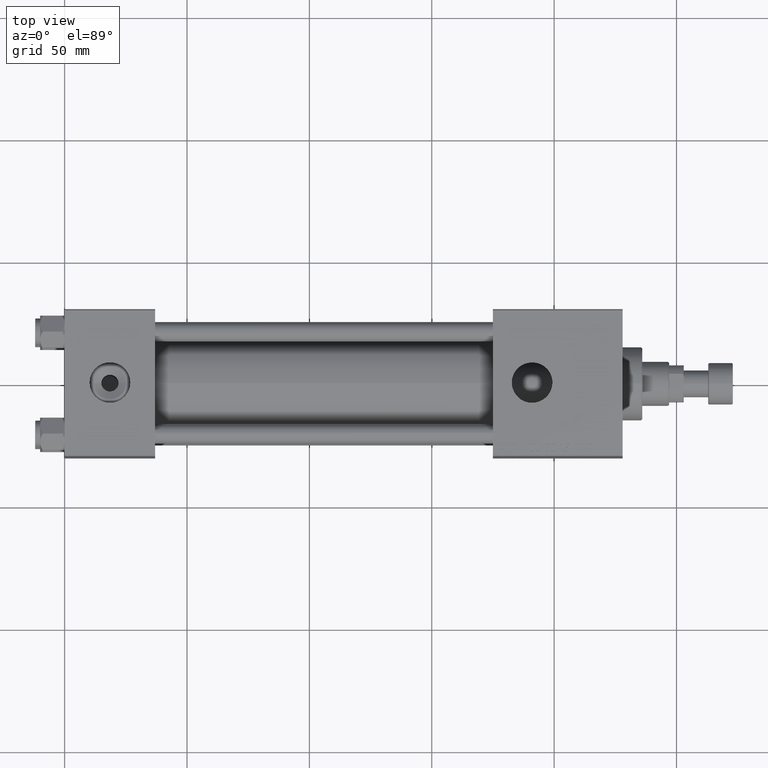
[diagram: clean part render]
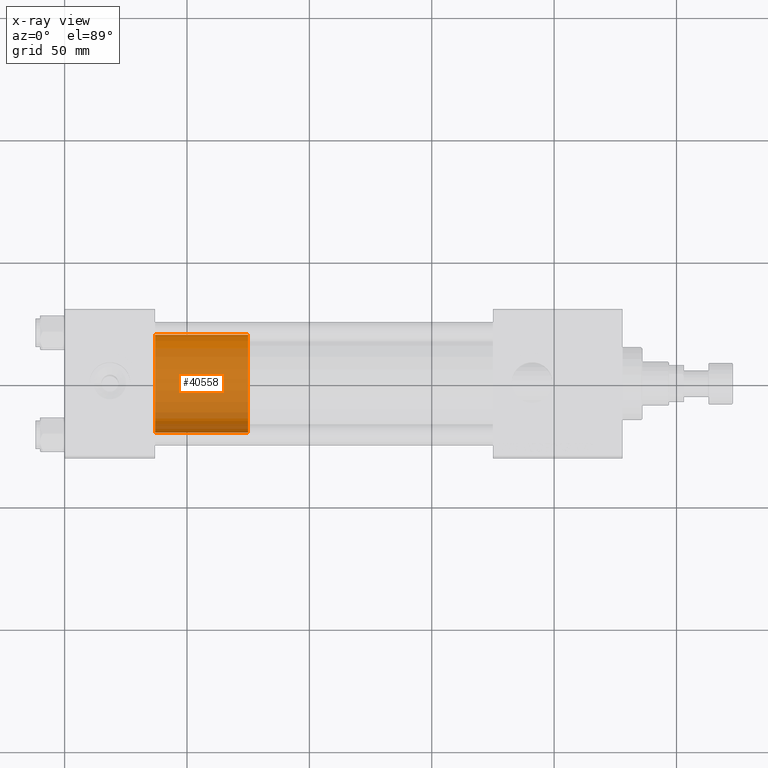
[diagram: x-ray — body ghosted, one internal face saturated and labeled with its STEP entity id]
A machine part, top view, then the same camera in x-ray: the body is ghosted and one INTERNAL B-rep face — a face not visible from any outside direction — is saturated and labeled: STEP entity #40558.
In plain terms, the highlighted cylindrical surface (partial cylindrical patch) has radius 20 mm, axis along (-1, 0, 0).
Its self-contained STEP definition (entity closure, byte-faithful):
#134 = LINE ( 'NONE', #24186, #31182 ) ;
#1127 = FACE_OUTER_BOUND ( 'NONE', #1679, .T. ) ;
#1679 = EDGE_LOOP ( 'NONE', ( #5186, #48696, #3350, #47383 ) ) ;
#3222 = CARTESIAN_POINT ( 'NONE',  ( 0.000000000000000000, 0.000000000000000000, 0.000000000000000000 ) ) ;
#3350 = ORIENTED_EDGE ( 'NONE', *, *, #9502, .T. ) ;
#5186 = ORIENTED_EDGE ( 'NONE', *, *, #38399, .F. ) ;
#6703 = DIRECTION ( 'NONE',  ( 1.000000000000000000, 0.000000000000000000, 0.000000000000000000 ) ) ;
#9502 = EDGE_CURVE ( 'NONE', #24396, #51170, #36732, .T. ) ;
#9627 = CARTESIAN_POINT ( 'NONE',  ( 20.00000000000000000, 2.449293598294706513E-15, 0.000000000000000000 ) ) ;
#11216 = DIRECTION ( 'NONE',  ( 1.000000000000000000, 0.000000000000000000, 0.000000000000000000 ) ) ;
#11217 = DIRECTION ( 'NONE',  ( 0.000000000000000000, 0.000000000000000000, 1.000000000000000000 ) ) ;
#15485 = DIRECTION ( 'NONE',  ( 0.000000000000000000, 0.000000000000000000, 1.000000000000000000 ) ) ;
#16041 = CARTESIAN_POINT ( 'NONE',  ( -20.00000000000000000, 0.000000000000000000, 0.000000000000000000 ) ) ;
#17376 = VERTEX_POINT ( 'NONE', #43987 ) ;
#17934 = CYLINDRICAL_SURFACE ( 'NONE', #28048, 20.00000000000000000 ) ;
#18200 = CARTESIAN_POINT ( 'NONE',  ( 0.000000000000000000, 0.000000000000000000, 38.00000000000000000 ) ) ;
#21442 = LINE ( 'NONE', #34243, #51214 ) ;
#24186 = CARTESIAN_POINT ( 'NONE',  ( 20.00000000000000000, 2.449293598294706513E-15, 38.00000000000000000 ) ) ;
#24396 = VERTEX_POINT ( 'NONE', #9627 ) ;
#27793 = CARTESIAN_POINT ( 'NONE',  ( 0.000000000000000000, 0.000000000000000000, 38.00000000000000000 ) ) ;
#28048 = AXIS2_PLACEMENT_3D ( 'NONE', #18200, #42513, #33963 ) ;
#31182 = VECTOR ( 'NONE', #41001, 1000.000000000000000 ) ;
#32756 = EDGE_CURVE ( 'NONE', #17376, #24396, #134, .T. ) ;
#33963 = DIRECTION ( 'NONE',  ( -1.000000000000000000, 0.000000000000000000, 0.000000000000000000 ) ) ;
#34243 = CARTESIAN_POINT ( 'NONE',  ( -20.00000000000000000, 0.000000000000000000, 38.00000000000000000 ) ) ;
#36732 = CIRCLE ( 'NONE', #49534, 20.00000000000000000 ) ;
#37726 = DIRECTION ( 'NONE',  ( -0.000000000000000000, -0.000000000000000000, -1.000000000000000000 ) ) ;
#38223 = CIRCLE ( 'NONE', #40777, 20.00000000000000000 ) ;
#38399 = EDGE_CURVE ( 'NONE', #17376, #42517, #38223, .T. ) ;
#40558 = ADVANCED_FACE ( 'NONE', ( #1127 ), #17934, .T. ) ;
#40777 = AXIS2_PLACEMENT_3D ( 'NONE', #27793, #15485, #11216 ) ;
#41001 = DIRECTION ( 'NONE',  ( -0.000000000000000000, -0.000000000000000000, -1.000000000000000000 ) ) ;
#42513 = DIRECTION ( 'NONE',  ( -0.000000000000000000, -0.000000000000000000, -1.000000000000000000 ) ) ;
#42517 = VERTEX_POINT ( 'NONE', #47122 ) ;
#43987 = CARTESIAN_POINT ( 'NONE',  ( 20.00000000000000000, 2.449293598294706513E-15, 38.00000000000000000 ) ) ;
#47122 = CARTESIAN_POINT ( 'NONE',  ( -20.00000000000000000, 0.000000000000000000, 38.00000000000000000 ) ) ;
#47383 = ORIENTED_EDGE ( 'NONE', *, *, #47550, .F. ) ;
#47550 = EDGE_CURVE ( 'NONE', #42517, #51170, #21442, .T. ) ;
#48696 = ORIENTED_EDGE ( 'NONE', *, *, #32756, .T. ) ;
#49534 = AXIS2_PLACEMENT_3D ( 'NONE', #3222, #11217, #6703 ) ;
#51170 = VERTEX_POINT ( 'NONE', #16041 ) ;
#51214 = VECTOR ( 'NONE', #37726, 1000.000000000000000 ) ;